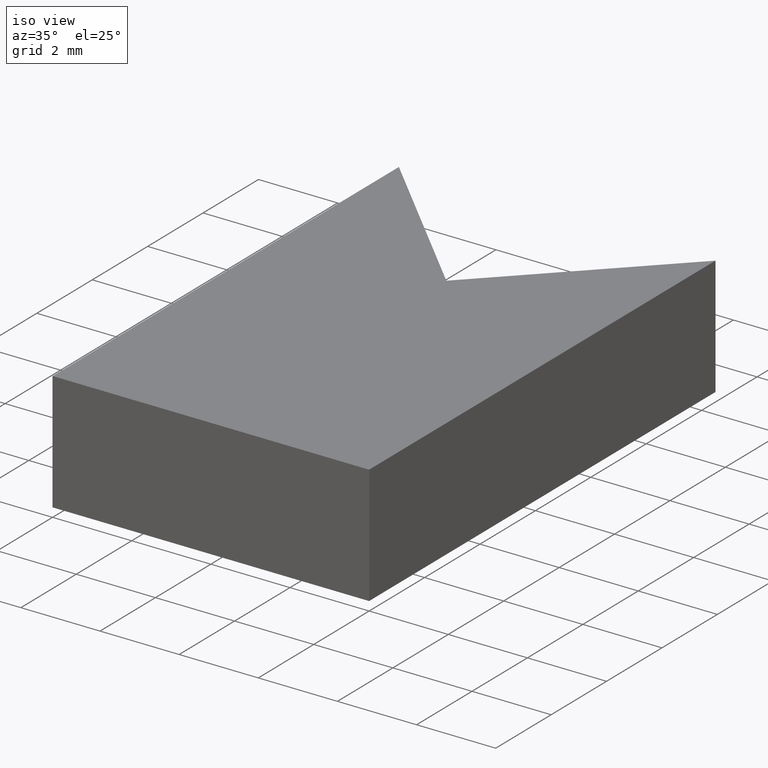
[diagram: clean part render]
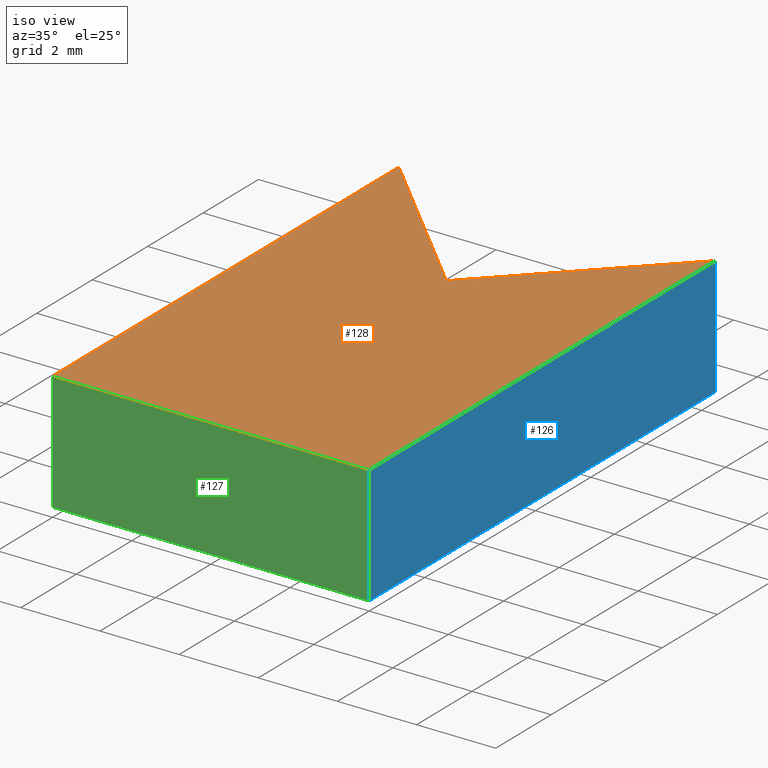
[diagram: same view with three faces highlighted in distinct colors, each labeled with its STEP entity id]
A machine part, iso view with three faces highlighted in distinct colors.
Their STEP definitions:

[orange] entity #128 — the highlighted planar face has unit normal (0, 0, 1).
#22=FACE_OUTER_BOUND('',#29,.T.);
#29=EDGE_LOOP('',(#110,#111,#112,#113,#114));
#35=LINE('',#202,#50);
#38=LINE('',#207,#53);
#40=LINE('',#211,#55);
#42=LINE('',#215,#57);
#44=LINE('',#218,#59);
#50=VECTOR('',#167,10.);
#53=VECTOR('',#172,10.);
#55=VECTOR('',#176,10.);
#57=VECTOR('',#180,10.);
#59=VECTOR('',#184,10.);
#65=VERTEX_POINT('',#200);
#66=VERTEX_POINT('',#201);
#67=VERTEX_POINT('',#206);
#68=VERTEX_POINT('',#210);
#69=VERTEX_POINT('',#214);
#75=EDGE_CURVE('',#65,#66,#35,.T.);
#78=EDGE_CURVE('',#66,#67,#38,.T.);
#80=EDGE_CURVE('',#67,#68,#40,.T.);
#82=EDGE_CURVE('',#68,#69,#42,.T.);
#84=EDGE_CURVE('',#69,#65,#44,.T.);
#110=ORIENTED_EDGE('',*,*,#75,.F.);
#111=ORIENTED_EDGE('',*,*,#84,.F.);
#112=ORIENTED_EDGE('',*,*,#82,.F.);
#113=ORIENTED_EDGE('',*,*,#80,.F.);
#114=ORIENTED_EDGE('',*,*,#78,.F.);
#121=PLANE('',#155);
#128=ADVANCED_FACE('',(#22),#121,.T.);
#155=AXIS2_PLACEMENT_3D('',#219,#185,#186);
#167=DIRECTION('',(1.77635683940025E-16,1.,0.));
#172=DIRECTION('',(0.707106781186548,-0.707106781186547,0.));
#176=DIRECTION('',(0.707106781186548,0.707106781186547,0.));
#180=DIRECTION('',(1.77635683940025E-16,-1.,0.));
#184=DIRECTION('',(-1.,0.,0.));
#185=DIRECTION('center_axis',(0.,0.,1.));
#186=DIRECTION('ref_axis',(1.,0.,0.));
#200=CARTESIAN_POINT('',(-4.,-4.8888881406096E-16,1.5));
#201=CARTESIAN_POINT('',(-4.,12.5,1.5));
#202=CARTESIAN_POINT('',(-4.,-4.8888881406096E-16,1.5));
#206=CARTESIAN_POINT('',(0.,8.5,1.5));
#207=CARTESIAN_POINT('',(-4.,12.5,1.5));
#210=CARTESIAN_POINT('',(4.,12.5,1.5));
#211=CARTESIAN_POINT('',(0.,8.5,1.5));
#214=CARTESIAN_POINT('',(4.,-4.8888881406096E-16,1.5));
#215=CARTESIAN_POINT('',(4.,12.5,1.5));
#218=CARTESIAN_POINT('',(4.,-4.8888881406096E-16,1.5));
#219=CARTESIAN_POINT('Origin',(0.,6.20674614144833,1.5));

[blue] entity #126 — the highlighted planar face has unit normal (1, 0, 0).
#20=FACE_OUTER_BOUND('',#27,.T.);
#27=EDGE_LOOP('',(#102,#103,#104,#105));
#30=LINE('',#191,#45);
#41=LINE('',#212,#56);
#42=LINE('',#215,#57);
#43=LINE('',#216,#58);
#45=VECTOR('',#160,10.);
#56=VECTOR('',#177,10.);
#57=VECTOR('',#180,10.);
#58=VECTOR('',#181,10.);
#60=VERTEX_POINT('',#189);
#61=VERTEX_POINT('',#190);
#68=VERTEX_POINT('',#210);
#69=VERTEX_POINT('',#214);
#70=EDGE_CURVE('',#60,#61,#30,.T.);
#81=EDGE_CURVE('',#68,#61,#41,.T.);
#82=EDGE_CURVE('',#68,#69,#42,.T.);
#83=EDGE_CURVE('',#60,#69,#43,.T.);
#102=ORIENTED_EDGE('',*,*,#82,.T.);
#103=ORIENTED_EDGE('',*,*,#83,.F.);
#104=ORIENTED_EDGE('',*,*,#70,.T.);
#105=ORIENTED_EDGE('',*,*,#81,.F.);
#119=PLANE('',#153);
#126=ADVANCED_FACE('',(#20),#119,.T.);
#153=AXIS2_PLACEMENT_3D('',#213,#178,#179);
#160=DIRECTION('',(-1.77635683940025E-16,1.,0.));
#177=DIRECTION('',(0.,0.,-1.));
#178=DIRECTION('center_axis',(1.,1.77635683940025E-16,0.));
#179=DIRECTION('ref_axis',(0.,0.,-1.));
#180=DIRECTION('',(1.77635683940025E-16,-1.,0.));
#181=DIRECTION('',(0.,0.,1.));
#189=CARTESIAN_POINT('',(4.,-4.8888881406096E-16,-1.5));
#190=CARTESIAN_POINT('',(4.,12.5,-1.5));
#191=CARTESIAN_POINT('',(4.,12.5,-1.5));
#210=CARTESIAN_POINT('',(4.,12.5,1.5));
#212=CARTESIAN_POINT('',(4.,12.5,0.));
#213=CARTESIAN_POINT('Origin',(4.,12.5,0.));
#214=CARTESIAN_POINT('',(4.,-4.8888881406096E-16,1.5));
#215=CARTESIAN_POINT('',(4.,12.5,1.5));
#216=CARTESIAN_POINT('',(4.,-4.8888881406096E-16,0.));

[green] entity #127 — the highlighted planar face has unit normal (0, -1, 0).
#21=FACE_OUTER_BOUND('',#28,.T.);
#28=EDGE_LOOP('',(#106,#107,#108,#109));
#31=LINE('',#193,#46);
#37=LINE('',#204,#52);
#43=LINE('',#216,#58);
#44=LINE('',#218,#59);
#46=VECTOR('',#161,10.);
#52=VECTOR('',#169,10.);
#58=VECTOR('',#181,10.);
#59=VECTOR('',#184,10.);
#60=VERTEX_POINT('',#189);
#62=VERTEX_POINT('',#192);
#65=VERTEX_POINT('',#200);
#69=VERTEX_POINT('',#214);
#71=EDGE_CURVE('',#62,#60,#31,.T.);
#77=EDGE_CURVE('',#65,#62,#37,.T.);
#83=EDGE_CURVE('',#60,#69,#43,.T.);
#84=EDGE_CURVE('',#69,#65,#44,.T.);
#106=ORIENTED_EDGE('',*,*,#84,.T.);
#107=ORIENTED_EDGE('',*,*,#77,.T.);
#108=ORIENTED_EDGE('',*,*,#71,.T.);
#109=ORIENTED_EDGE('',*,*,#83,.T.);
#120=PLANE('',#154);
#127=ADVANCED_FACE('',(#21),#120,.T.);
#154=AXIS2_PLACEMENT_3D('',#217,#182,#183);
#161=DIRECTION('',(1.,0.,0.));
#169=DIRECTION('',(0.,0.,-1.));
#181=DIRECTION('',(0.,0.,1.));
#182=DIRECTION('center_axis',(0.,-1.,0.));
#183=DIRECTION('ref_axis',(0.,0.,-1.));
#184=DIRECTION('',(-1.,0.,0.));
#189=CARTESIAN_POINT('',(4.,-4.8888881406096E-16,-1.5));
#192=CARTESIAN_POINT('',(-4.,-4.8888881406096E-16,-1.5));
#193=CARTESIAN_POINT('',(4.,-4.8888881406096E-16,-1.5));
#200=CARTESIAN_POINT('',(-4.,-4.8888881406096E-16,1.5));
#204=CARTESIAN_POINT('',(-4.,-4.8888881406096E-16,0.));
#214=CARTESIAN_POINT('',(4.,-4.8888881406096E-16,1.5));
#216=CARTESIAN_POINT('',(4.,-4.8888881406096E-16,0.));
#217=CARTESIAN_POINT('Origin',(4.,-4.8888881406096E-16,0.));
#218=CARTESIAN_POINT('',(4.,-4.8888881406096E-16,1.5));